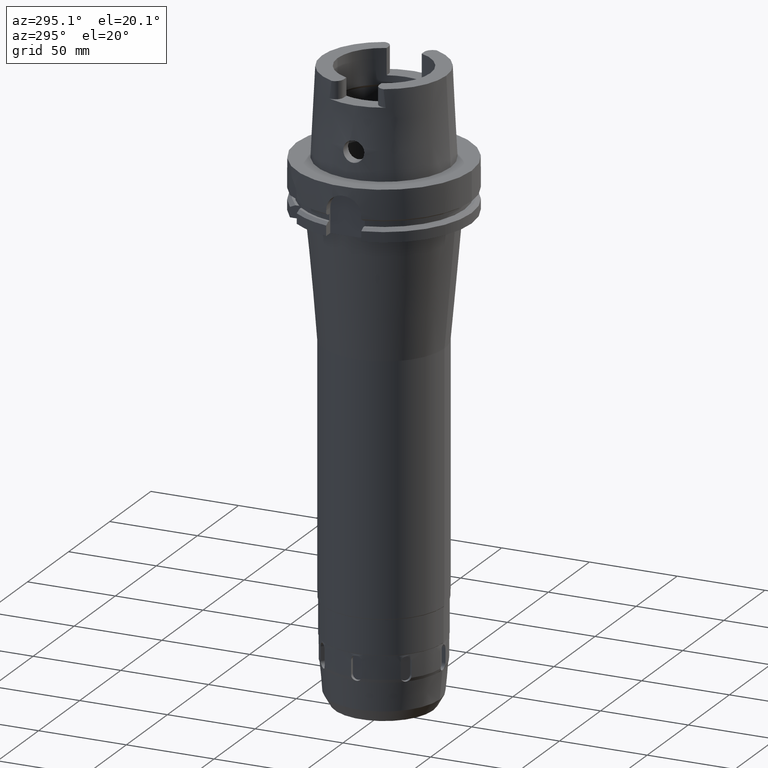
[diagram: clean part render]
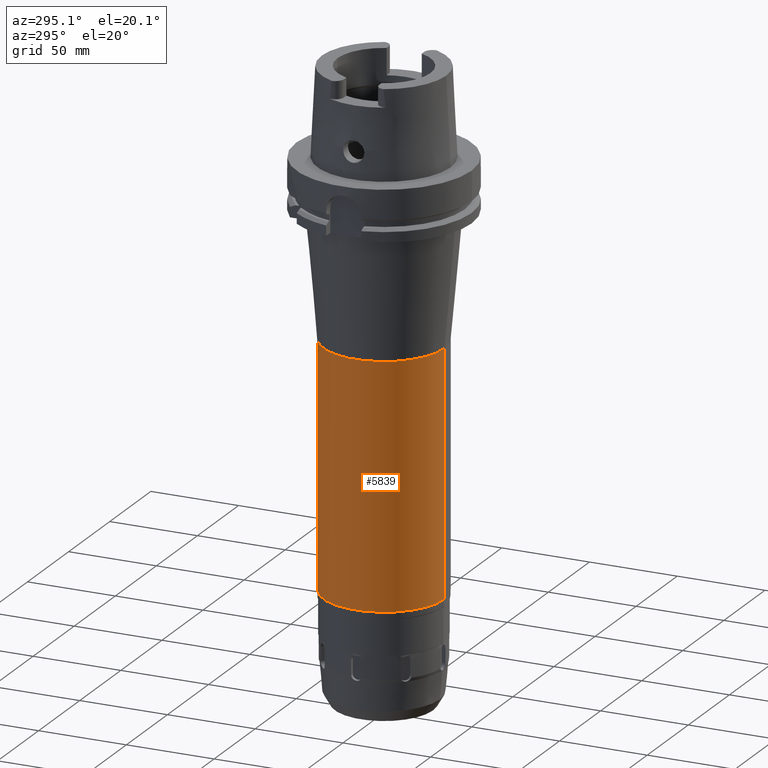
[diagram: same view with one face highlighted and labeled with its STEP entity id]
A machine part, auxiliary view. The second image highlights one B-rep face of the part: STEP entity #5839.
In plain terms, the highlighted cylindrical surface (partial cylindrical patch) has radius 34.5 mm, axis along (0, 0, 1).
Its self-contained STEP definition (entity closure, byte-faithful):
#2527=CARTESIAN_POINT('',(0.E0,0.E0,-2.378E2));
#2528=DIRECTION('',(0.E0,0.E0,1.E0));
#2529=DIRECTION('',(0.E0,1.E0,0.E0));
#2530=AXIS2_PLACEMENT_3D('',#2527,#2528,#2529);
#2551=DIRECTION('',(0.E0,0.E0,-1.E0));
#2552=VECTOR('',#2551,1.3773E2);
#2553=CARTESIAN_POINT('',(0.E0,3.45E1,-1.0007E2));
#2554=LINE('',#2553,#2552);
#2558=DIRECTION('',(0.E0,0.E0,-1.E0));
#2559=VECTOR('',#2558,1.3773E2);
#2560=CARTESIAN_POINT('',(0.E0,-3.45E1,-1.0007E2));
#2561=LINE('',#2560,#2559);
#2572=CARTESIAN_POINT('',(0.E0,0.E0,-1.0007E2));
#2573=DIRECTION('',(0.E0,0.E0,-1.E0));
#2574=DIRECTION('',(0.E0,-1.E0,0.E0));
#2575=AXIS2_PLACEMENT_3D('',#2572,#2573,#2574);
#3907=CARTESIAN_POINT('',(0.E0,-3.45E1,-2.378E2));
#3908=CARTESIAN_POINT('',(0.E0,3.45E1,-2.378E2));
#3909=VERTEX_POINT('',#3907);
#3910=VERTEX_POINT('',#3908);
#3911=CARTESIAN_POINT('',(0.E0,3.45E1,-1.0007E2));
#3912=VERTEX_POINT('',#3911);
#3913=CARTESIAN_POINT('',(0.E0,-3.45E1,-1.0007E2));
#3914=VERTEX_POINT('',#3913);
#5827=CARTESIAN_POINT('',(0.E0,0.E0,-3.175E2));
#5828=DIRECTION('',(0.E0,0.E0,1.E0));
#5829=DIRECTION('',(0.E0,1.E0,0.E0));
#5830=AXIS2_PLACEMENT_3D('',#5827,#5828,#5829);
#5831=CYLINDRICAL_SURFACE('',#5830,3.45E1);
#5832=ORIENTED_EDGE('',*,*,#5817,.F.);
#5834=ORIENTED_EDGE('',*,*,#5833,.F.);
#5835=ORIENTED_EDGE('',*,*,#5820,.T.);
#5836=ORIENTED_EDGE('',*,*,#5803,.F.);
#5837=EDGE_LOOP('',(#5832,#5834,#5835,#5836));
#5838=FACE_OUTER_BOUND('',#5837,.F.);
#2531=CIRCLE('',#2530,3.45E1);
#2576=CIRCLE('',#2575,3.45E1);
#5803=EDGE_CURVE('',#3910,#3909,#2531,.T.);
#5817=EDGE_CURVE('',#3912,#3910,#2554,.T.);
#5820=EDGE_CURVE('',#3914,#3909,#2561,.T.);
#5833=EDGE_CURVE('',#3914,#3912,#2576,.T.);
#5839=ADVANCED_FACE('',(#5838),#5831,.T.);